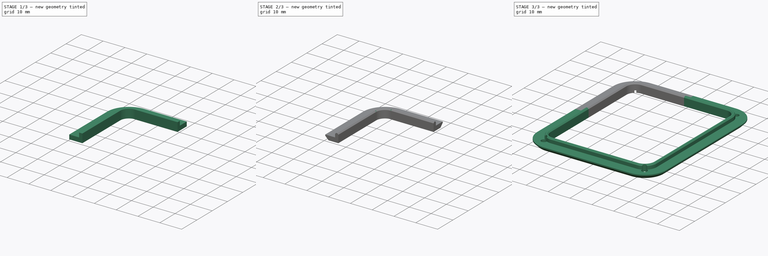
[diagram: build sequence overview — one tinted view per stage of 3, left to right]
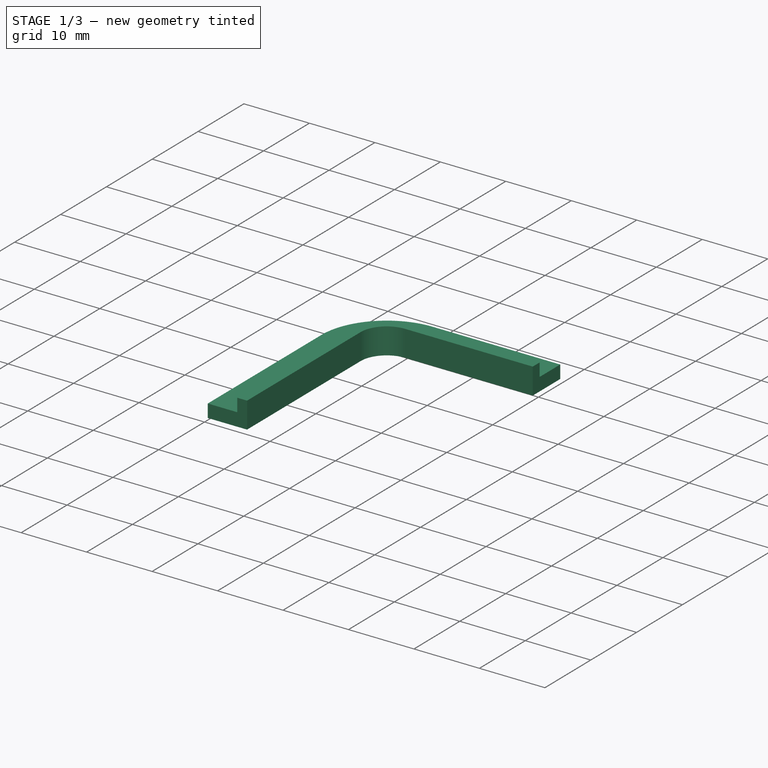
[diagram: stage 1 of 3 — iso view after this stage's code; geometry added in this stage tinted green]
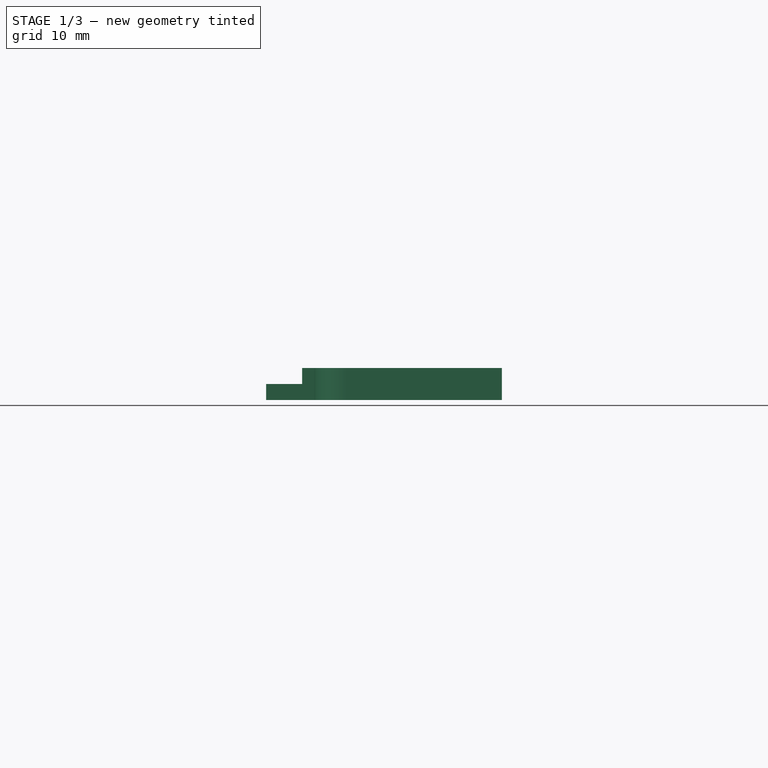
[diagram: stage 1 of 3 — front view after this stage's code; geometry added in this stage tinted green]
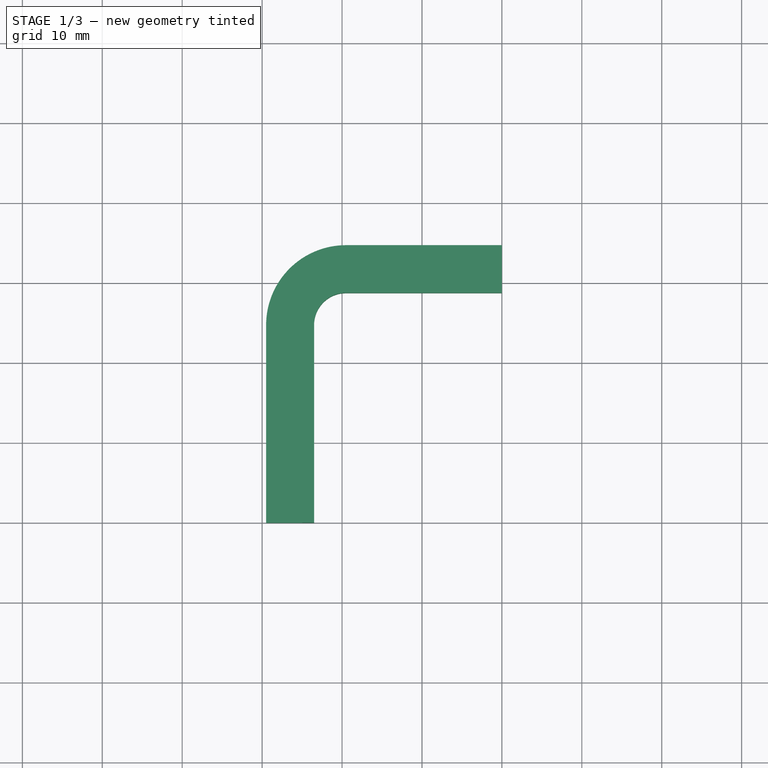
[diagram: stage 1 of 3 — top view after this stage's code; geometry added in this stage tinted green]
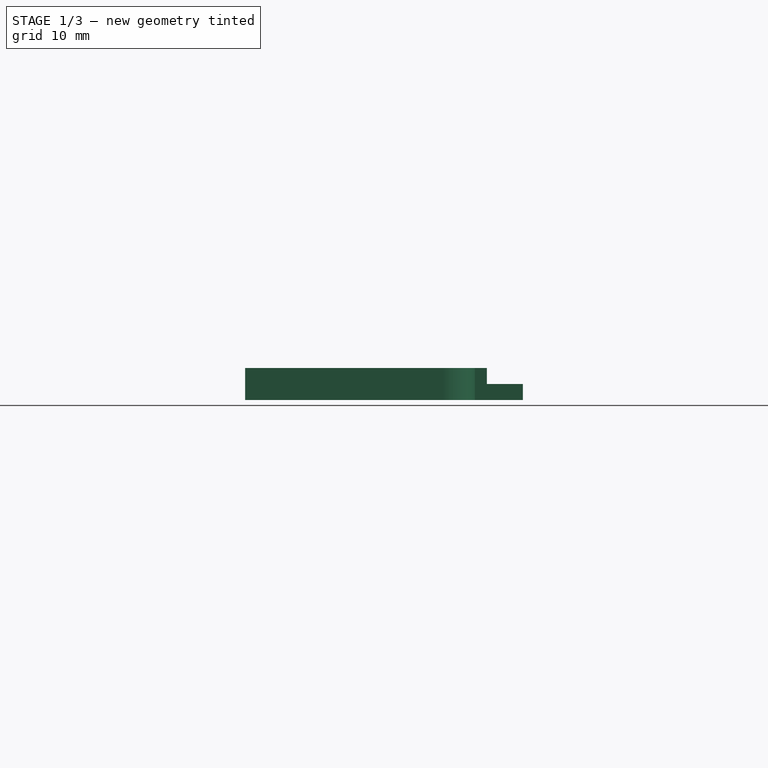
[diagram: stage 1 of 3 — right view after this stage's code; geometry added in this stage tinted green]
FCSTD DOCUMENT  (FreeCAD 0.20R29603 (Git))
Label: keypad_border
License: All rights reserved
LicenseURL: http://en.wikipedia.org/wiki/All_rights_reserved
objects: Sketcher::SketchObject×4, PartDesign::Pad×2, PartDesign::Pocket×2, PartDesign::Chamfer×2, PartDesign::Mirrored×2, PartDesign::MultiTransform×1, Drawing::FeatureViewPart×1, Drawing::FeaturePage×1, PartDesign::Body×1
note: 20 computed .brp shape members not serialized (recipe doc carries the construction recipe); baked Part::Feature solids carry a one-line shape summary decoded from their .brp

FEATURE [Sketcher::SketchObject] Sketch  label="corner_s"
  FullyConstrained = true
  expr: Constraints[24] = 47 / 2
  expr: Constraints[25] = 57.5 / 2
  sketch-geometry (12):
    g0: LineSegment StartX=-23.5 StartY=0 StartZ=0 EndX=-23.5 EndY=24.75 EndZ=0
    g1: LineSegment StartX=0 StartY=28.75 StartZ=0 EndX=-19.5 EndY=28.75 EndZ=0
    g2: LineSegment StartX=-29.5 StartY=0 StartZ=0 EndX=-29.5 EndY=24.75 EndZ=0
    g3: LineSegment StartX=-19.5 StartY=34.75 StartZ=0 EndX=0 EndY=34.75 EndZ=0
    g4: ArcOfCircle CenterX=-19.5 CenterY=24.75 CenterZ=0 NormalX=0 NormalY=0 NormalZ=1 AngleXU=0 Radius=4 StartAngle=1.5708 EndAngle=3.14159
    g5: ArcOfCircle CenterX=-19.5 CenterY=24.75 CenterZ=0 NormalX=0 NormalY=0 NormalZ=1 AngleXU=0 Radius=10 StartAngle=1.5708 EndAngle=3.14159
    g6: LineSegment StartX=-29.5 StartY=24.75 StartZ=0 EndX=-19.5 EndY=24.75 EndZ=0
    g7: LineSegment StartX=-19.5 StartY=24.75 StartZ=0 EndX=-19.5 EndY=34.75 EndZ=0
    g8: LineSegment StartX=-23.5 StartY=24.75 StartZ=0 EndX=-19.5 EndY=24.75 EndZ=0
    g9: LineSegment StartX=-19.5 StartY=24.75 StartZ=0 EndX=-19.5 EndY=28.75 EndZ=0
    g10: LineSegment StartX=0 StartY=28.75 StartZ=0 EndX=0 EndY=34.75 EndZ=0
    g11: LineSegment StartX=-23.5 StartY=0 StartZ=0 EndX=-29.5 EndY=0 EndZ=0
  constraints (33):
    c: PointOnObject(g0,g-1)
    c: Vertical(g0)
    c: PointOnObject(g1,g-2)
    c: Horizontal(g1)
    c: PointOnObject(g2,g-1)
    c: Vertical(g2)
    c: PointOnObject(g3,g-2)
    c: Horizontal(g3)
    c: Coincident(g4,g1)
    c: Coincident(g4,g0)
    c: Coincident(g5,g2)
    c: Coincident(g5,g3)
    c: Coincident(g6,g2)
    c: Coincident(g6,g5)
    c: Horizontal(g6)
    c: Coincident(g7,g5)
    c: Coincident(g7,g3)
    c: Coincident(g8,g0)
    c: Coincident(g8,g4)
    c: Horizontal(g8)
    c: Coincident(g9,g4)
    c: Coincident(g9,g1)
    c: Vertical(g9)
    c: Vertical(g7)
    c: DistanceX(g0,g-1) = 23.5
    c: DistanceY(g-1,g1) = 28.75
    c: DistanceY(g1,g3) = 6
    c: Coincident(g10,g1)
    c: Coincident(g10,g3)
    c: Coincident(g11,g0)
    c: Coincident(g11,g2)
    c: Diameter(g4) = 8
    c: Coincident(g5,g4)
FEATURE [PartDesign::Pad] Pad  label="corner"
  Direction = (0,0,1)
  Length = 2
  Length2 = 10
  Profile = -> Sketch
  ReferenceAxis = -> Sketch [N_Axis]
  Type = 0
FEATURE [Sketcher::SketchObject] Sketch001  label="internal_edge_s"
  FullyConstrained = true
  MapMode = 5
  Placement = pos=(0,0,2) rot=(0,0,1;0rad)
  Support = -> [Pad]
  expr: Constraints[24] = 47 / 2
  expr: Constraints[25] = 57.5 / 2
  sketch-geometry (12):
    g0: LineSegment StartX=-23.5 StartY=0 StartZ=0 EndX=-23.5 EndY=24.75 EndZ=0
    g1: LineSegment StartX=0 StartY=28.75 StartZ=0 EndX=-19.5 EndY=28.75 EndZ=0
    g2: LineSegment StartX=-25 StartY=0 StartZ=0 EndX=-25 EndY=24.75 EndZ=0
    g3: LineSegment StartX=-19.5 StartY=30.25 StartZ=0 EndX=0 EndY=30.25 EndZ=0
    g4: ArcOfCircle CenterX=-19.5 CenterY=24.75 CenterZ=0 NormalX=0 NormalY=0 NormalZ=1 AngleXU=0 Radius=4 StartAngle=1.5708 EndAngle=3.14159
    g5: ArcOfCircle CenterX=-19.5 CenterY=24.75 CenterZ=0 NormalX=0 NormalY=0 NormalZ=1 AngleXU=0 Radius=5.5 StartAngle=1.5708 EndAngle=3.14159
    g6: LineSegment StartX=-25 StartY=24.75 StartZ=0 EndX=-19.5 EndY=24.75 EndZ=0
    g7: LineSegment StartX=-19.5 StartY=24.75 StartZ=0 EndX=-19.5 EndY=30.25 EndZ=0
    g8: LineSegment StartX=-23.5 StartY=24.75 StartZ=0 EndX=-19.5 EndY=24.75 EndZ=0
    g9: LineSegment StartX=-19.5 StartY=24.75 StartZ=0 EndX=-19.5 EndY=28.75 EndZ=0
    g10: LineSegment StartX=0 StartY=28.75 StartZ=0 EndX=0 EndY=30.25 EndZ=0
    g11: LineSegment StartX=-23.5 StartY=0 StartZ=0 EndX=-25 EndY=0 EndZ=0
  constraints (33):
    c: PointOnObject(g0,g-1)
    c: Vertical(g0)
    c: PointOnObject(g1,g-2)
    c: Horizontal(g1)
    c: PointOnObject(g2,g-1)
    c: Vertical(g2)
    c: PointOnObject(g3,g-2)
    c: Horizontal(g3)
    c: Coincident(g4,g1)
    c: Coincident(g4,g0)
    c: Coincident(g5,g2)
    c: Coincident(g5,g3)
    c: Coincident(g6,g2)
    c: Coincident(g6,g5)
    c: Horizontal(g6)
    c: Coincident(g7,g5)
    c: Coincident(g7,g3)
    c: Coincident(g8,g0)
    c: Coincident(g8,g4)
    c: Horizontal(g8)
    c: Coincident(g9,g4)
    c: Coincident(g9,g1)
    c: Vertical(g9)
    c: Vertical(g7)
    c: DistanceX(g0,g-1) = 23.5
    c: DistanceY(g-1,g1) = 28.75
    c: DistanceY(g1,g3) = 1.5
    c: Coincident(g10,g1)
    c: Coincident(g10,g3)
    c: Coincident(g11,g0)
    c: Coincident(g11,g2)
    c: Diameter(g4) = 8
    c: Coincident(g5,g4)
FEATURE [PartDesign::Pad] Pad001  label="intrnal_edge"
  BaseFeature = -> Pad
  Direction = (0,0,1)
  Length = 2
  Length2 = 10
  Profile = -> Sketch001
  ReferenceAxis = -> Sketch001 [N_Axis]
  Type = 0
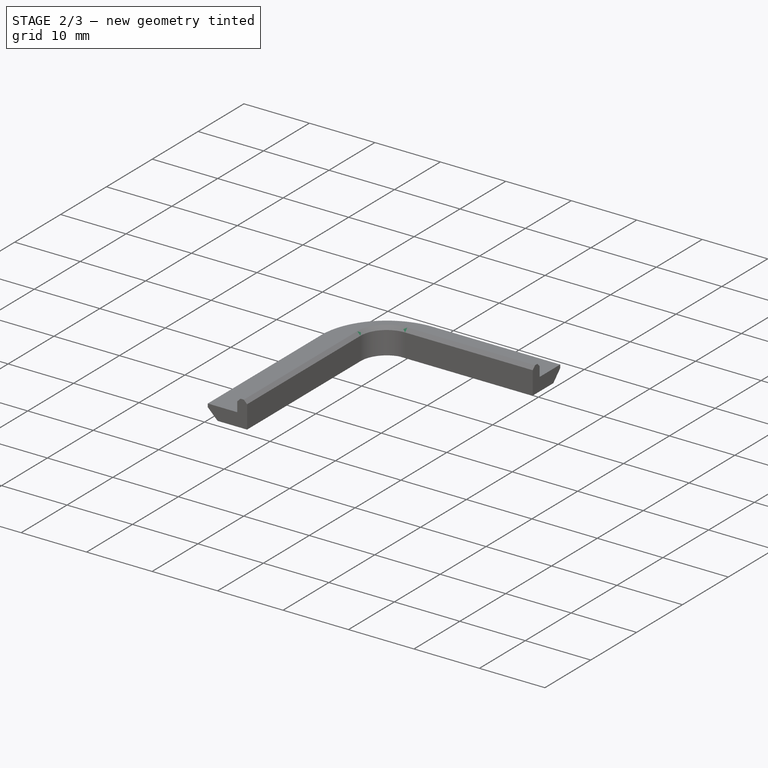
[diagram: stage 2 of 3 — iso view after this stage's code; geometry added in this stage tinted green]
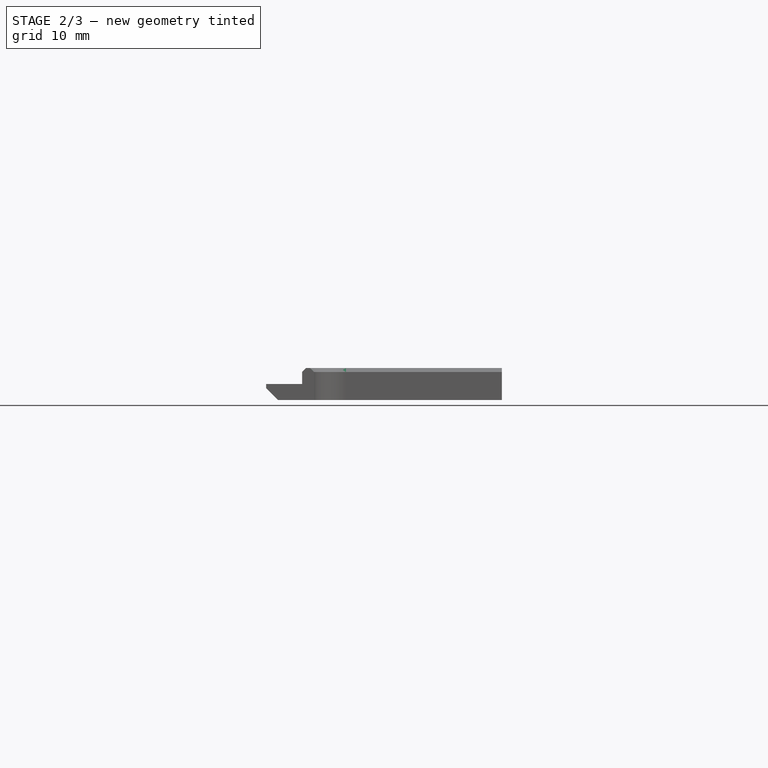
[diagram: stage 2 of 3 — front view after this stage's code; geometry added in this stage tinted green]
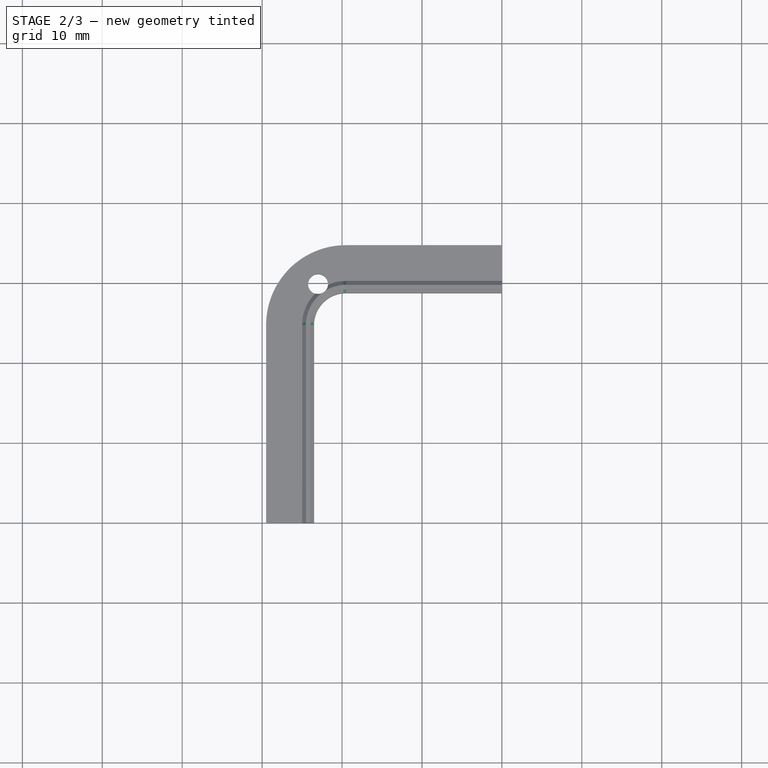
[diagram: stage 2 of 3 — top view after this stage's code; geometry added in this stage tinted green]
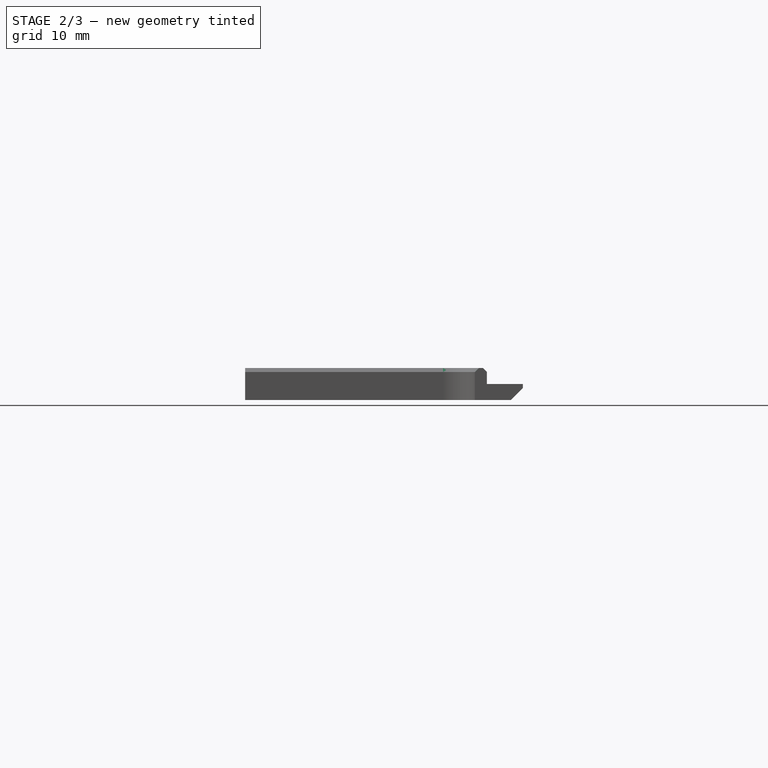
[diagram: stage 2 of 3 — right view after this stage's code; geometry added in this stage tinted green]
FEATURE [Sketcher::SketchObject] Sketch002  label="screw_hole_s"
  FullyConstrained = true
  MapMode = 5
  Support = -> [XY_Plane]
  expr: Constraints[0] = 59.75 / 2
  expr: Constraints[2] = 46 / 2
  sketch-geometry (1):
    g0: Circle CenterX=-23 CenterY=29.875 CenterZ=0 NormalX=0 NormalY=0 NormalZ=1 AngleXU=0 Radius=1.25
  constraints (3):
    c: DistanceY(g-1,g0) = 29.875
    c: Diameter(g0) = 2.5
    c: DistanceX(g0,g-1) = 23
FEATURE [PartDesign::Pocket] Pocket  label="screw_hole"
  BaseFeature = -> Pad001
  Direction = (0,0,-1)
  Length = 5
  Length2 = 5
  Profile = -> Sketch002
  ReferenceAxis = -> Sketch002 [N_Axis]
  Reversed = true
  Type = 1
FEATURE [PartDesign::Chamfer] Chamfer  label="ext_chamfer"
  Angle = 45
  Base = -> Pocket [Edge12,Edge14,Edge16]
  BaseFeature = -> Pocket
  ChamferType = 0
  FlipDirection = false
  Size = 1.5
  Size2 = 1
  SupportTransform = false
  UseAllEdges = false
FEATURE [PartDesign::Chamfer] Chamfer001  label="int_chamfer"
  Angle = 45
  Base = -> Chamfer [Edge50,Edge51,Edge56,Edge59,Edge58,Edge45,Edge43]
  BaseFeature = -> Chamfer
  ChamferType = 0
  FlipDirection = false
  Size = 0.5
  Size2 = 1
  SupportTransform = false
  UseAllEdges = false
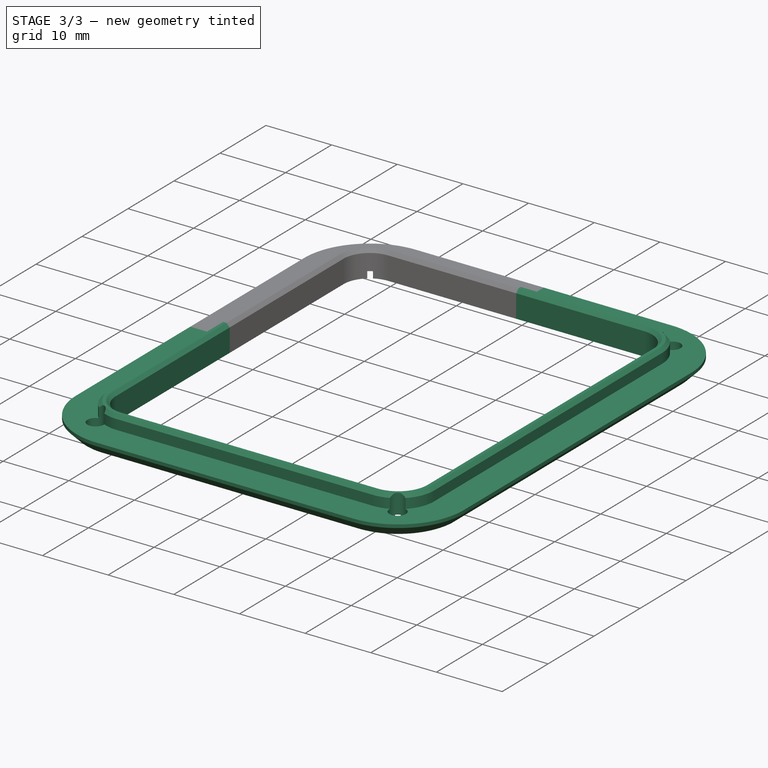
[diagram: stage 3 of 3 — iso view after this stage's code; geometry added in this stage tinted green]
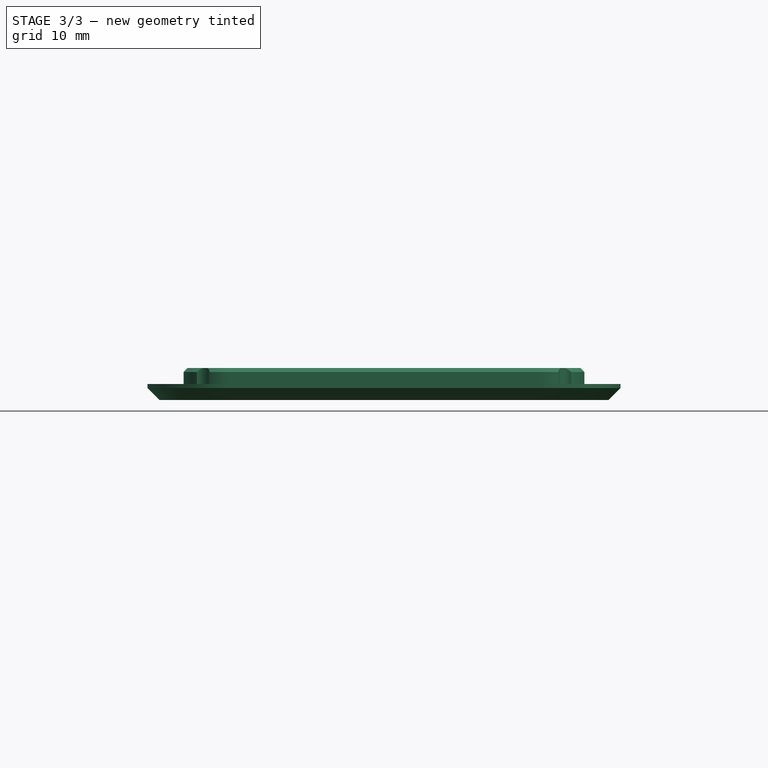
[diagram: stage 3 of 3 — front view after this stage's code; geometry added in this stage tinted green]
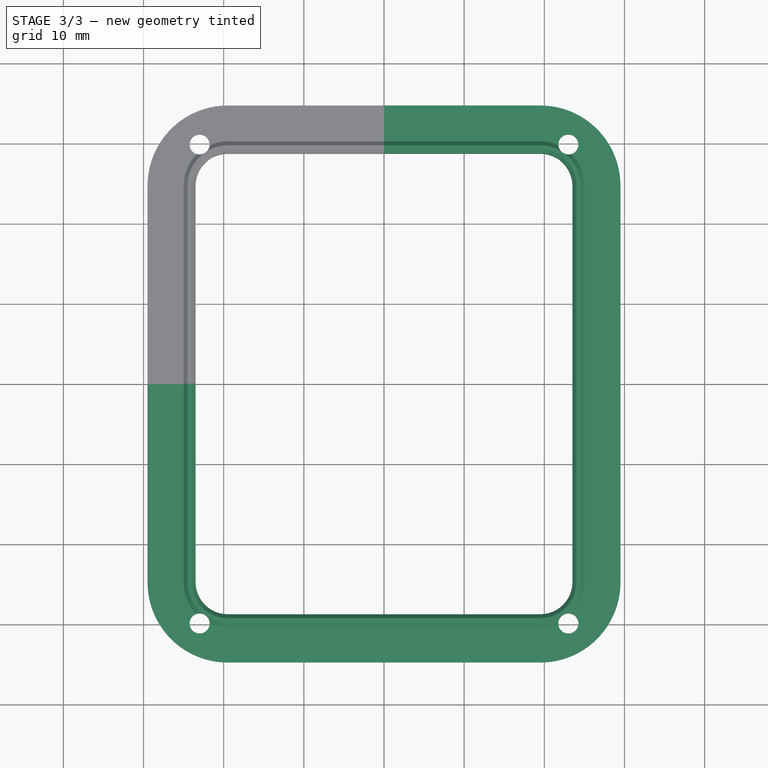
[diagram: stage 3 of 3 — top view after this stage's code; geometry added in this stage tinted green]
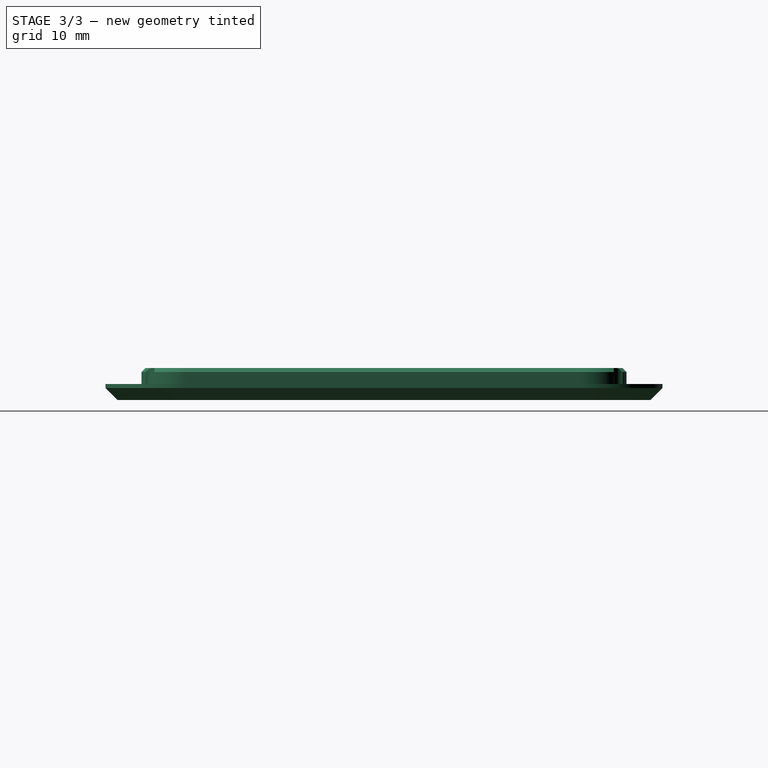
[diagram: stage 3 of 3 — right view after this stage's code; geometry added in this stage tinted green]
FEATURE [PartDesign::Mirrored] Mirrored
  MirrorPlane = -> Sketch [V_Axis]
FEATURE [PartDesign::Mirrored] Mirrored001
  MirrorPlane = -> Sketch [H_Axis]
FEATURE [PartDesign::MultiTransform] MultiTransform  label="full_part"
  BaseFeature = -> Chamfer001
  Originals = -> [Pad,Pad001,Pocket,Chamfer,Chamfer001]
  Transformations = -> [Mirrored,Mirrored001]
FEATURE [Drawing::FeatureViewPart] View001  label="View"
  Direction = (0,0,1)
  HiddenWidth = 0.15
  LineWidth = 0.35
  Rotation = 0
  ShowHiddenLines = false
  ShowSmoothLines = false
  Source = -> MultiTransform
  Tolerance = 0.05
  ViewResult = <blob: 5754 chars omitted>
  Visible = true
  X = 100
  Y = 100
FEATURE [Drawing::FeaturePage] Page001  label="Page"
  EditableTexts = Designed by Name | Date | Scale | Weight | Title | Subtitle | Drawing number | Sheet
  Group = -> [View001]
  Template = <path>
FEATURE [Sketcher::SketchObject] Sketch003  label="screws_heads_holes_s"
  FullyConstrained = true
  MapMode = 5
  Placement = pos=(0,0,0) rot=(1,0,0;3.14159rad)
  Support = -> [MultiTransform]
  expr: Constraints[0] = 59.75 / 2
  expr: Constraints[1] = 46 / 2
  sketch-geometry (4):
    g0: Circle CenterX=-23 CenterY=29.875 CenterZ=0 NormalX=0 NormalY=0 NormalZ=1 AngleXU=0 Radius=2.25
    g1: Circle CenterX=23 CenterY=-29.875 CenterZ=0 NormalX=0 NormalY=0 NormalZ=1 AngleXU=0 Radius=2.25
    g2: Circle CenterX=23 CenterY=29.875 CenterZ=0 NormalX=0 NormalY=0 NormalZ=1 AngleXU=0 Radius=2.25
    g3: Circle CenterX=-23 CenterY=-29.875 CenterZ=0 NormalX=0 NormalY=0 NormalZ=1 AngleXU=0 Radius=2.25
  constraints (9):
    c: DistanceY(g-1,g0) = 29.875
    c: DistanceX(g0,g-1) = 23
    c: Diameter(g0) = 4.5
    c: Equal(g3,g1)
    c: Equal(g1,g2)
    c: Equal(g2,g0)
    c: Symmetric(g0,g1,g-1)
    c: Symmetric(g0,g2,g-2)
    c: Symmetric(g3,g0,g-1)
FEATURE [PartDesign::Pocket] Pocket001  label="screws_heads_holes"
  BaseFeature = -> MultiTransform
  Direction = (0,0,1)
  Length = 1
  Length2 = 5
  Profile = -> Sketch003
  ReferenceAxis = -> Sketch003 [N_Axis]
  Type = 0
FEATURE [PartDesign::Body] Body
  Group = -> [Sketch,Pad,Sketch001,Pad001,Sketch002,Pocket,Chamfer,Chamfer001,MultiTransform,Mirrored,Mirrored001,Sketch003,Pocket001]
  Origin = -> Origin
  Tip = -> Pocket001
note: 1 file-system path scrubbed to <path> (originals preserved in the JSON sidecar)
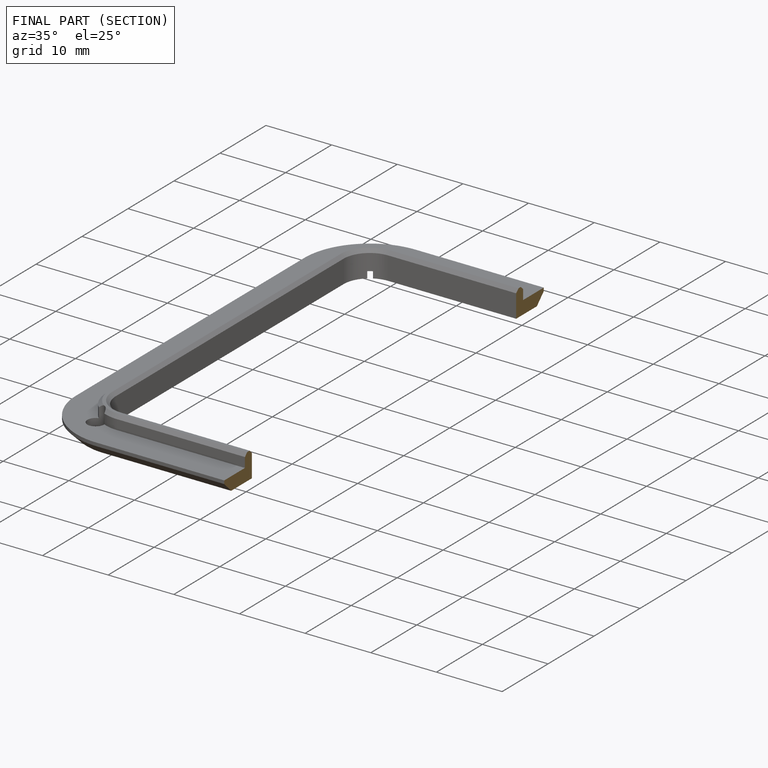
[diagram: finished part — half-section view (interior)]
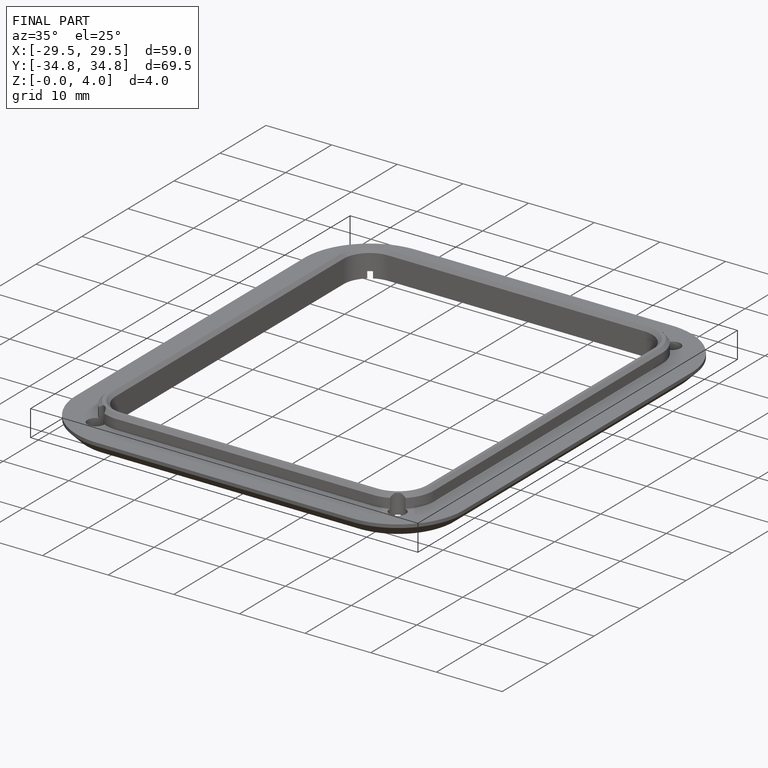
[diagram: finished part — iso view with bounding-box wireframe]
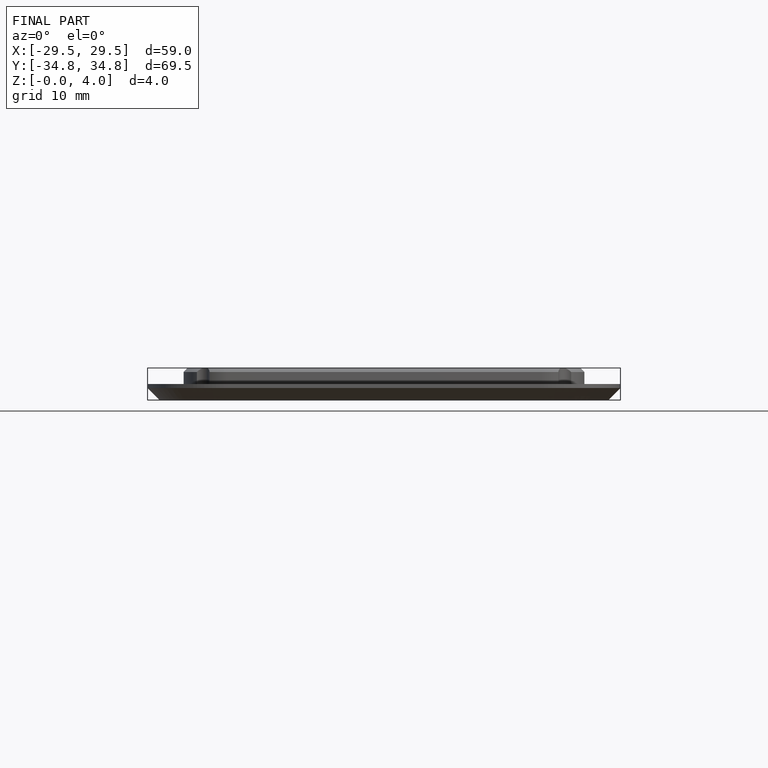
[diagram: finished part — front view with bounding-box wireframe]
